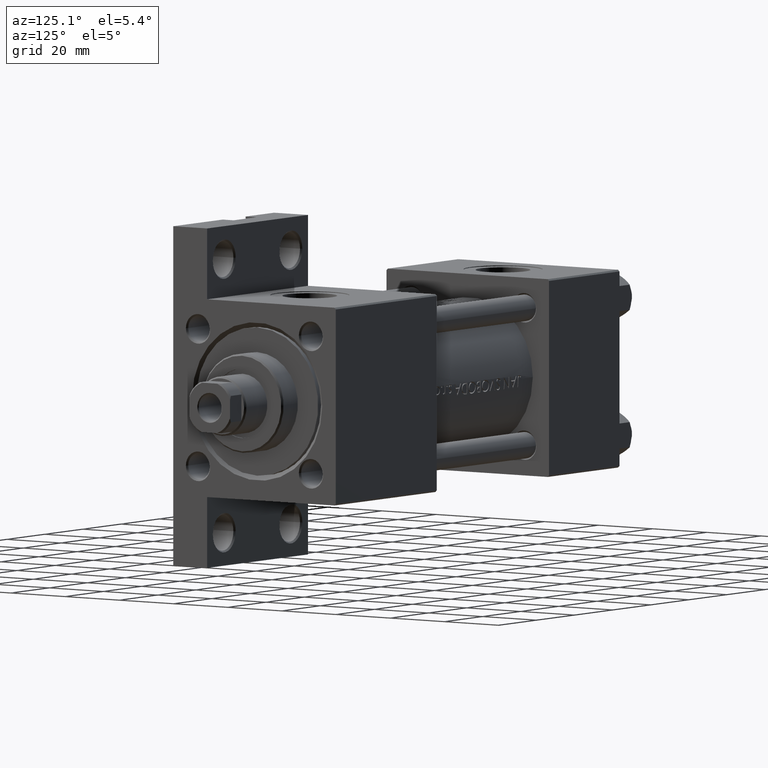
[diagram: clean part render]
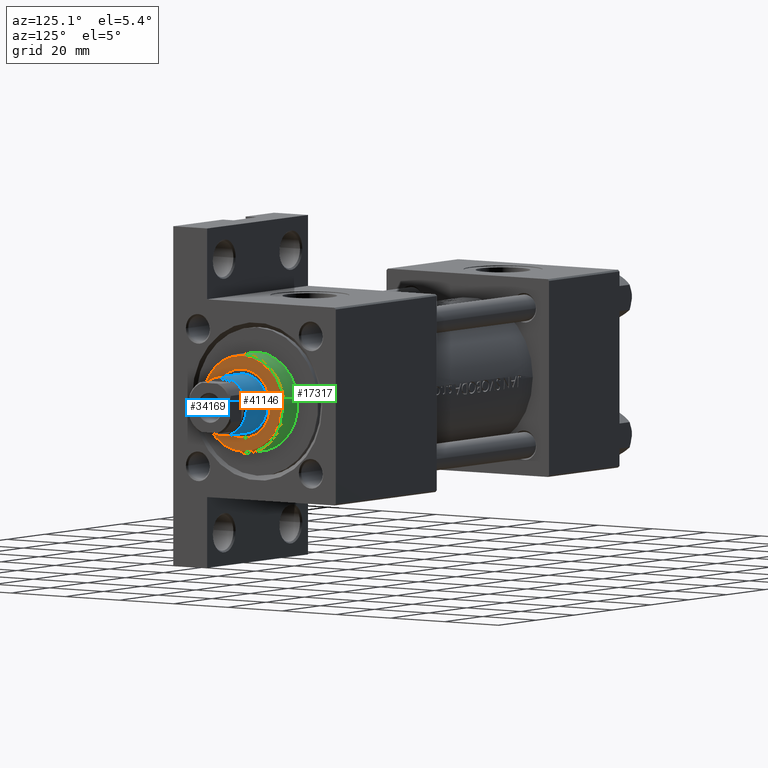
[diagram: same view with three faces highlighted in distinct colors, each labeled with its STEP entity id]
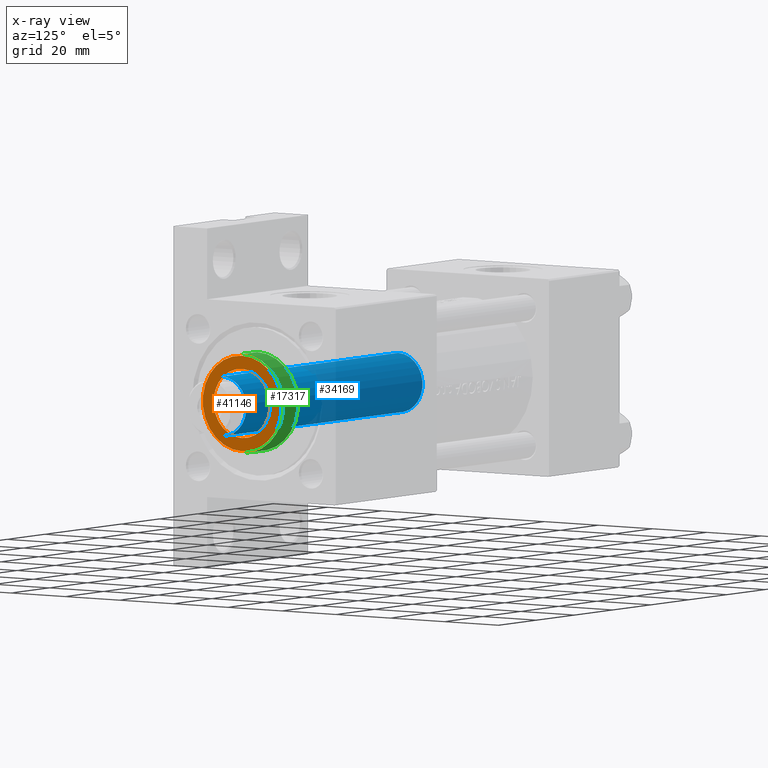
[diagram: x-ray of the same camera — body ghosted, the three highlighted faces saturated]
A machine part, auxiliary view with three faces highlighted in distinct colors.
The next image is the same camera in x-ray (body ghosted, the three faces saturated) — at least one of them is partly hidden behind the body in this view.
Their STEP definitions:

[orange] entity #41146 — the highlighted planar face has unit normal (1, 0, 0).
#934 = DIRECTION ( 'NONE',  ( 1.000000000000000000, 0.000000000000000000, -0.000000000000000000 ) ) ;
#3043 = EDGE_CURVE ( 'NONE', #43468, #25114, #44428, .T. ) ;
#3244 = EDGE_CURVE ( 'NONE', #37507, #10929, #45250, .T. ) ;
#3494 = AXIS2_PLACEMENT_3D ( 'NONE', #29195, #44002, #3537 ) ;
#3537 = DIRECTION ( 'NONE',  ( 1.000000000000000000, 0.000000000000000000, 0.000000000000000000 ) ) ;
#4197 = CARTESIAN_POINT ( 'NONE',  ( 0.000000000000000000, 0.000000000000000000, 36.69999999999999574 ) ) ;
#4386 = PLANE ( 'NONE',  #34438 ) ;
#6431 = CARTESIAN_POINT ( 'NONE',  ( 14.50000000000001776, 1.806354028742346985E-15, 36.69999999999999574 ) ) ;
#6563 = CARTESIAN_POINT ( 'NONE',  ( 0.000000000000000000, 0.000000000000000000, 36.69999999999999574 ) ) ;
#7599 = EDGE_LOOP ( 'NONE', ( #17487, #26746 ) ) ;
#9640 = CIRCLE ( 'NONE', #48176, 14.50000000000001776 ) ;
#10929 = VERTEX_POINT ( 'NONE', #48193 ) ;
#11557 = CARTESIAN_POINT ( 'NONE',  ( 0.000000000000000000, 0.000000000000000000, 36.69999999999999574 ) ) ;
#12755 = ORIENTED_EDGE ( 'NONE', *, *, #19875, .F. ) ;
#13285 = DIRECTION ( 'NONE',  ( 0.000000000000000000, 0.000000000000000000, 1.000000000000000000 ) ) ;
#14251 = CARTESIAN_POINT ( 'NONE',  ( -14.50000000000001776, 0.000000000000000000, 36.69999999999999574 ) ) ;
#17201 = ORIENTED_EDGE ( 'NONE', *, *, #3244, .F. ) ;
#17487 = ORIENTED_EDGE ( 'NONE', *, *, #3043, .T. ) ;
#17930 = DIRECTION ( 'NONE',  ( 0.000000000000000000, 0.000000000000000000, 1.000000000000000000 ) ) ;
#18278 = DIRECTION ( 'NONE',  ( 1.000000000000000000, 0.000000000000000000, 0.000000000000000000 ) ) ;
#19344 = AXIS2_PLACEMENT_3D ( 'NONE', #4197, #37018, #18278 ) ;
#19875 = EDGE_CURVE ( 'NONE', #10929, #37507, #20892, .T. ) ;
#20892 = CIRCLE ( 'NONE', #19344, 10.50000000000000000 ) ;
#21588 = AXIS2_PLACEMENT_3D ( 'NONE', #6563, #17930, #32970 ) ;
#23121 = FACE_OUTER_BOUND ( 'NONE', #7599, .T. ) ;
#25114 = VERTEX_POINT ( 'NONE', #6431 ) ;
#25310 = CARTESIAN_POINT ( 'NONE',  ( 0.000000000000000000, 0.000000000000000000, 36.69999999999999574 ) ) ;
#25562 = CARTESIAN_POINT ( 'NONE',  ( 10.50000000000000000, 0.000000000000000000, 36.69999999999999574 ) ) ;
#26746 = ORIENTED_EDGE ( 'NONE', *, *, #30843, .T. ) ;
#26825 = FACE_BOUND ( 'NONE', #31721, .T. ) ;
#29195 = CARTESIAN_POINT ( 'NONE',  ( 0.000000000000000000, 0.000000000000000000, 36.69999999999999574 ) ) ;
#30843 = EDGE_CURVE ( 'NONE', #25114, #43468, #9640, .T. ) ;
#31721 = EDGE_LOOP ( 'NONE', ( #17201, #12755 ) ) ;
#32970 = DIRECTION ( 'NONE',  ( 1.000000000000000000, 0.000000000000000000, 0.000000000000000000 ) ) ;
#34438 = AXIS2_PLACEMENT_3D ( 'NONE', #11557, #38179, #934 ) ;
#37018 = DIRECTION ( 'NONE',  ( 0.000000000000000000, 0.000000000000000000, 1.000000000000000000 ) ) ;
#37507 = VERTEX_POINT ( 'NONE', #25562 ) ;
#38179 = DIRECTION ( 'NONE',  ( 0.000000000000000000, 0.000000000000000000, 1.000000000000000000 ) ) ;
#41146 = ADVANCED_FACE ( 'NONE', ( #26825, #23121 ), #4386, .T. ) ;
#43468 = VERTEX_POINT ( 'NONE', #14251 ) ;
#44002 = DIRECTION ( 'NONE',  ( 0.000000000000000000, 0.000000000000000000, 1.000000000000000000 ) ) ;
#44428 = CIRCLE ( 'NONE', #21588, 14.50000000000001776 ) ;
#45250 = CIRCLE ( 'NONE', #3494, 10.50000000000000000 ) ;
#47036 = DIRECTION ( 'NONE',  ( 1.000000000000000000, 0.000000000000000000, 0.000000000000000000 ) ) ;
#48176 = AXIS2_PLACEMENT_3D ( 'NONE', #25310, #13285, #47036 ) ;
#48193 = CARTESIAN_POINT ( 'NONE',  ( -10.50000000000000000, 1.285879139104720831E-15, 36.69999999999999574 ) ) ;

[blue] entity #34169 — the highlighted cylindrical surface (edge-blend (fillet) strip) has radius 9 mm, axis along (-1, 0, 0).
#1889 = ORIENTED_EDGE ( 'NONE', *, *, #16130, .T. ) ;
#2336 = CARTESIAN_POINT ( 'NONE',  ( 9.000000000000000000, 1.102182119232617517E-15, 38.00000000000000000 ) ) ;
#5272 = CARTESIAN_POINT ( 'NONE',  ( -9.000000000000000000, 0.000000000000000000, 130.5000000000000853 ) ) ;
#6861 = VERTEX_POINT ( 'NONE', #30686 ) ;
#7304 = AXIS2_PLACEMENT_3D ( 'NONE', #44170, #21985, #48336 ) ;
#9132 = EDGE_CURVE ( 'NONE', #24636, #16339, #17795, .T. ) ;
#11088 = DIRECTION ( 'NONE',  ( -0.000000000000000000, -0.000000000000000000, -1.000000000000000000 ) ) ;
#12460 = FACE_OUTER_BOUND ( 'NONE', #26689, .T. ) ;
#14786 = DIRECTION ( 'NONE',  ( 0.000000000000000000, 0.000000000000000000, -1.000000000000000000 ) ) ;
#16076 = AXIS2_PLACEMENT_3D ( 'NONE', #45082, #14786, #48270 ) ;
#16130 = EDGE_CURVE ( 'NONE', #24636, #37563, #35089, .T. ) ;
#16339 = VERTEX_POINT ( 'NONE', #2336 ) ;
#17795 = LINE ( 'NONE', #32840, #28888 ) ;
#21985 = DIRECTION ( 'NONE',  ( 0.000000000000000000, 0.000000000000000000, 1.000000000000000000 ) ) ;
#24636 = VERTEX_POINT ( 'NONE', #34410 ) ;
#26689 = EDGE_LOOP ( 'NONE', ( #44425, #1889, #43296, #34920 ) ) ;
#28563 = CIRCLE ( 'NONE', #7304, 9.000000000000000000 ) ;
#28888 = VECTOR ( 'NONE', #29125, 1000.000000000000000 ) ;
#29125 = DIRECTION ( 'NONE',  ( -0.000000000000000000, -0.000000000000000000, -1.000000000000000000 ) ) ;
#30686 = CARTESIAN_POINT ( 'NONE',  ( -9.000000000000000000, 0.000000000000000000, 38.00000000000000000 ) ) ;
#32560 = EDGE_CURVE ( 'NONE', #6861, #16339, #28563, .T. ) ;
#32840 = CARTESIAN_POINT ( 'NONE',  ( 9.000000000000000000, 1.102182119232617517E-15, 131.0000000000000000 ) ) ;
#34169 = ADVANCED_FACE ( 'NONE', ( #12460 ), #38588, .T. ) ;
#34410 = CARTESIAN_POINT ( 'NONE',  ( 9.000000000000000000, 1.102182119232617517E-15, 130.5000000000000853 ) ) ;
#34875 = DIRECTION ( 'NONE',  ( -1.000000000000000000, 0.000000000000000000, 0.000000000000000000 ) ) ;
#34920 = ORIENTED_EDGE ( 'NONE', *, *, #32560, .T. ) ;
#35089 = CIRCLE ( 'NONE', #16076, 9.000000000000000000 ) ;
#37474 = LINE ( 'NONE', #44859, #40651 ) ;
#37563 = VERTEX_POINT ( 'NONE', #5272 ) ;
#38588 = CYLINDRICAL_SURFACE ( 'NONE', #41219, 9.000000000000000000 ) ;
#39180 = EDGE_CURVE ( 'NONE', #37563, #6861, #37474, .T. ) ;
#39558 = DIRECTION ( 'NONE',  ( -0.000000000000000000, -0.000000000000000000, -1.000000000000000000 ) ) ;
#40651 = VECTOR ( 'NONE', #11088, 1000.000000000000000 ) ;
#41219 = AXIS2_PLACEMENT_3D ( 'NONE', #43259, #39558, #34875 ) ;
#43259 = CARTESIAN_POINT ( 'NONE',  ( 0.000000000000000000, 0.000000000000000000, 131.0000000000000000 ) ) ;
#43296 = ORIENTED_EDGE ( 'NONE', *, *, #39180, .T. ) ;
#44170 = CARTESIAN_POINT ( 'NONE',  ( 0.000000000000000000, 0.000000000000000000, 38.00000000000000000 ) ) ;
#44425 = ORIENTED_EDGE ( 'NONE', *, *, #9132, .F. ) ;
#44859 = CARTESIAN_POINT ( 'NONE',  ( -9.000000000000000000, 0.000000000000000000, 131.0000000000000000 ) ) ;
#45082 = CARTESIAN_POINT ( 'NONE',  ( 0.000000000000000000, 0.000000000000000000, 130.5000000000000853 ) ) ;
#48270 = DIRECTION ( 'NONE',  ( 1.000000000000000000, 0.000000000000000000, 0.000000000000000000 ) ) ;
#48336 = DIRECTION ( 'NONE',  ( 1.000000000000000000, 0.000000000000000000, 0.000000000000000000 ) ) ;

[green] entity #17317 — the highlighted cylindrical surface (partial cylindrical patch) has radius 15 mm, axis along (-1, 0, 0).
#865 = ORIENTED_EDGE ( 'NONE', *, *, #39139, .F. ) ;
#2676 = CARTESIAN_POINT ( 'NONE',  ( -15.00000000000000000, 0.000000000000000000, 36.20000000000000284 ) ) ;
#5110 = AXIS2_PLACEMENT_3D ( 'NONE', #12299, #27567, #42599 ) ;
#5568 = ORIENTED_EDGE ( 'NONE', *, *, #36901, .T. ) ;
#6171 = DIRECTION ( 'NONE',  ( 0.000000000000000000, 0.000000000000000000, -1.000000000000000000 ) ) ;
#7069 = FACE_OUTER_BOUND ( 'NONE', #18975, .T. ) ;
#7072 = ORIENTED_EDGE ( 'NONE', *, *, #37959, .T. ) ;
#9826 = CIRCLE ( 'NONE', #5110, 15.00000000000000000 ) ;
#10848 = CARTESIAN_POINT ( 'NONE',  ( 15.00000000000000000, 1.836970198721029589E-15, 36.69999999999999574 ) ) ;
#11757 = DIRECTION ( 'NONE',  ( -0.000000000000000000, -0.000000000000000000, -1.000000000000000000 ) ) ;
#12299 = CARTESIAN_POINT ( 'NONE',  ( 0.000000000000000000, 0.000000000000000000, 28.69999999999999929 ) ) ;
#14522 = VECTOR ( 'NONE', #11757, 1000.000000000000000 ) ;
#17317 = ADVANCED_FACE ( 'NONE', ( #7069 ), #48219, .T. ) ;
#17405 = EDGE_CURVE ( 'NONE', #29637, #36197, #38129, .T. ) ;
#18975 = EDGE_LOOP ( 'NONE', ( #865, #7072, #40701, #5568 ) ) ;
#20144 = CARTESIAN_POINT ( 'NONE',  ( 15.00000000000000000, 1.836970198721029589E-15, 28.69999999999999929 ) ) ;
#22266 = VERTEX_POINT ( 'NONE', #20144 ) ;
#24589 = CARTESIAN_POINT ( 'NONE',  ( 15.00000000000000000, 1.836970198721029589E-15, 36.20000000000000284 ) ) ;
#25550 = CARTESIAN_POINT ( 'NONE',  ( -15.00000000000000000, 0.000000000000000000, 28.69999999999999929 ) ) ;
#25875 = DIRECTION ( 'NONE',  ( -0.000000000000000000, -0.000000000000000000, -1.000000000000000000 ) ) ;
#26110 = LINE ( 'NONE', #10848, #35140 ) ;
#27567 = DIRECTION ( 'NONE',  ( 0.000000000000000000, 0.000000000000000000, 1.000000000000000000 ) ) ;
#29637 = VERTEX_POINT ( 'NONE', #2676 ) ;
#29756 = CARTESIAN_POINT ( 'NONE',  ( 0.000000000000000000, 0.000000000000000000, 36.69999999999999574 ) ) ;
#31849 = VERTEX_POINT ( 'NONE', #24589 ) ;
#32797 = DIRECTION ( 'NONE',  ( 1.000000000000000000, 0.000000000000000000, 0.000000000000000000 ) ) ;
#33215 = DIRECTION ( 'NONE',  ( -0.000000000000000000, -0.000000000000000000, -1.000000000000000000 ) ) ;
#35140 = VECTOR ( 'NONE', #25875, 1000.000000000000000 ) ;
#36197 = VERTEX_POINT ( 'NONE', #25550 ) ;
#36642 = AXIS2_PLACEMENT_3D ( 'NONE', #39957, #6171, #32797 ) ;
#36901 = EDGE_CURVE ( 'NONE', #36197, #22266, #9826, .T. ) ;
#37959 = EDGE_CURVE ( 'NONE', #31849, #29637, #46884, .T. ) ;
#38129 = LINE ( 'NONE', #45755, #14522 ) ;
#39139 = EDGE_CURVE ( 'NONE', #31849, #22266, #26110, .T. ) ;
#39719 = AXIS2_PLACEMENT_3D ( 'NONE', #29756, #33215, #47744 ) ;
#39957 = CARTESIAN_POINT ( 'NONE',  ( 0.000000000000000000, 0.000000000000000000, 36.20000000000000284 ) ) ;
#40701 = ORIENTED_EDGE ( 'NONE', *, *, #17405, .T. ) ;
#42599 = DIRECTION ( 'NONE',  ( 1.000000000000000000, 0.000000000000000000, 0.000000000000000000 ) ) ;
#45755 = CARTESIAN_POINT ( 'NONE',  ( -15.00000000000000000, 0.000000000000000000, 36.69999999999999574 ) ) ;
#46884 = CIRCLE ( 'NONE', #36642, 15.00000000000000000 ) ;
#47744 = DIRECTION ( 'NONE',  ( -1.000000000000000000, 0.000000000000000000, 0.000000000000000000 ) ) ;
#48219 = CYLINDRICAL_SURFACE ( 'NONE', #39719, 15.00000000000000000 ) ;